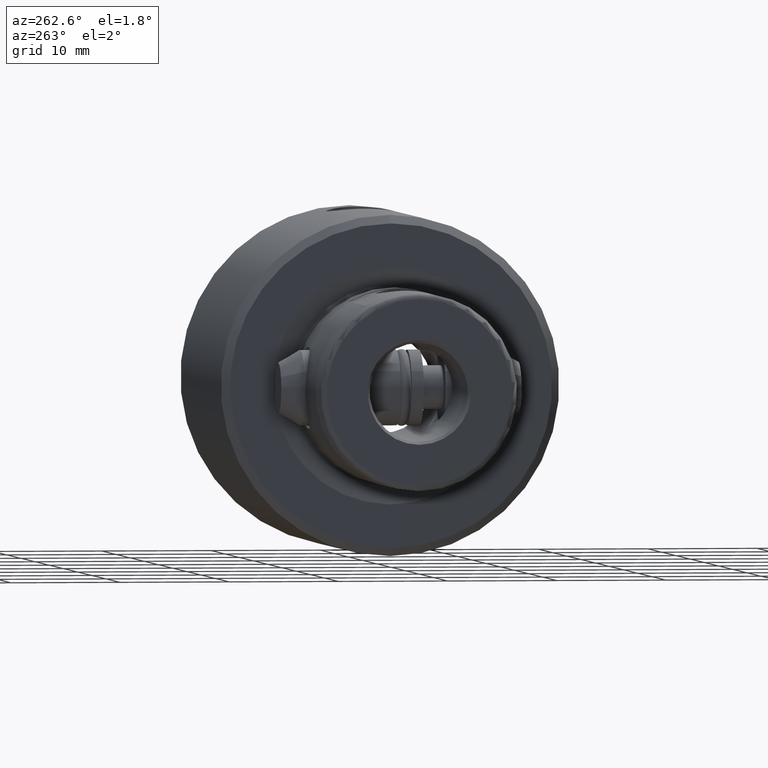
[diagram: clean part render]
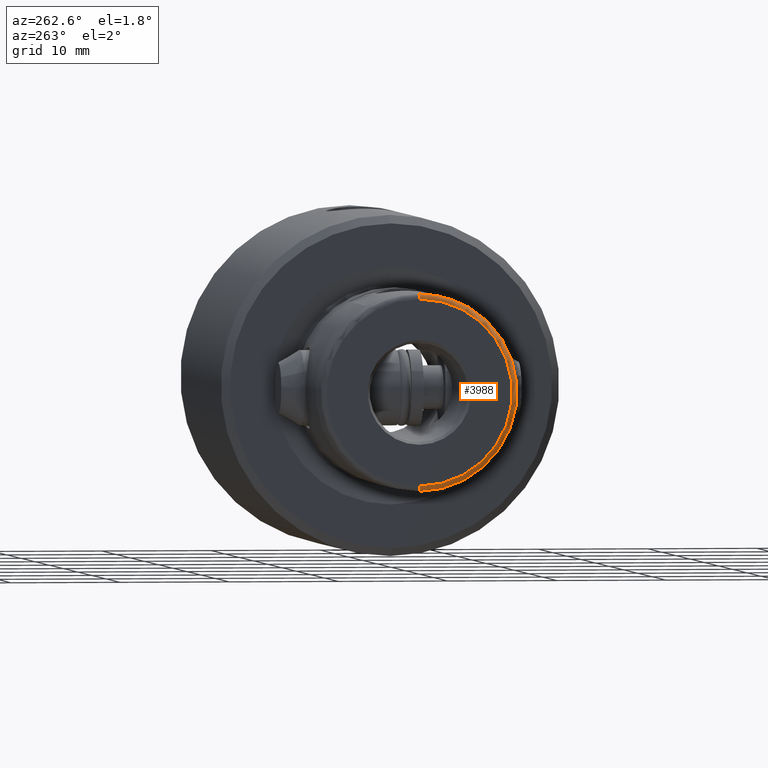
[diagram: same view with one face highlighted and labeled with its STEP entity id]
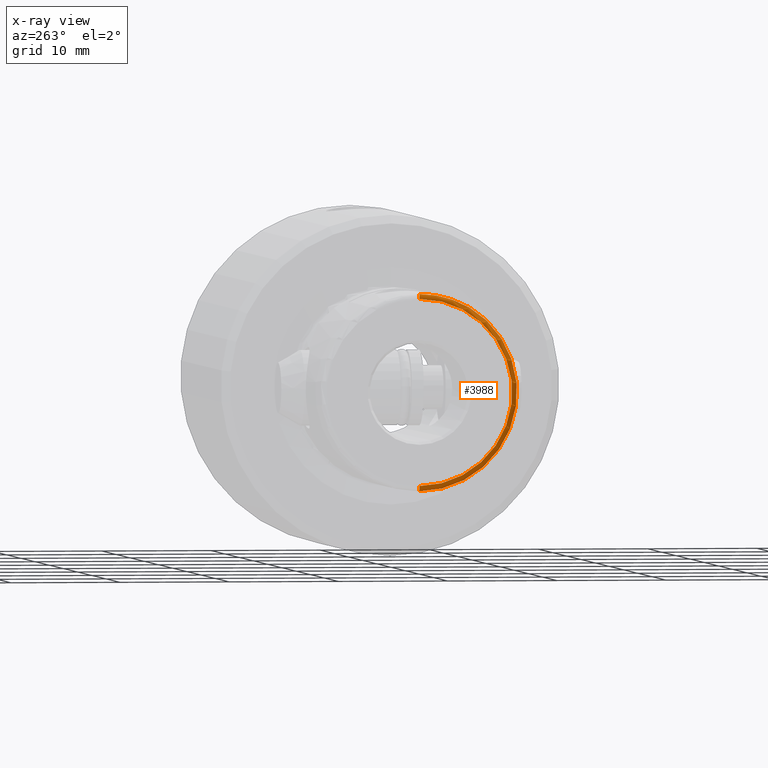
[diagram: x-ray of the same camera — body ghosted, the highlighted face saturated]
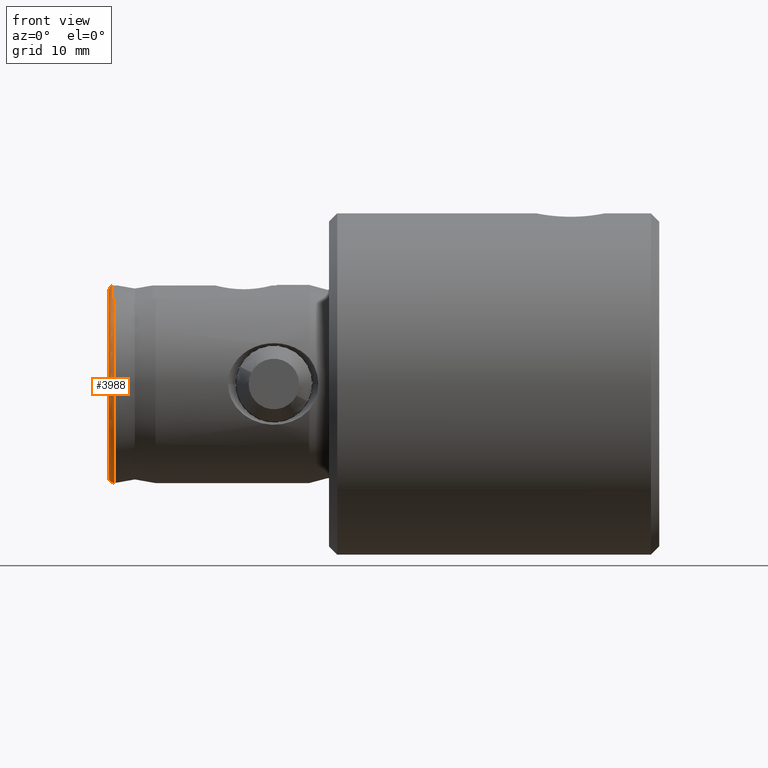
[diagram: same view with one face highlighted and labeled with its STEP entity id]
A machine part, auxiliary view. The second image highlights one B-rep face of the part: STEP entity #3988.
The next image is the same camera in x-ray: the body ghosted, the highlighted face saturated — about 0% of this face is hidden behind the body in this view.
A second angle (front view) of the same face is appended — the face is thin or edge-on in the first view.
In plain terms, the highlighted toroidal blend (fillet) surface has major radius 8.5 mm and minor (blend) radius 0.5 mm.
Its self-contained STEP definition (entity closure, byte-faithful):
#95 = ORIENTED_EDGE ( 'NONE', *, *, #2555, .F. ) ;
#128 = ORIENTED_EDGE ( 'NONE', *, *, #2601, .T. ) ;
#141 = CARTESIAN_POINT ( 'NONE',  ( 7.794228634065952100, -4.499999999999999100, 49.49999999999857900 ) ) ;
#154 = TOROIDAL_SURFACE ( 'NONE', #2292, 8.499999999999998200, 0.5000000000000000000 ) ;
#193 = CARTESIAN_POINT ( 'NONE',  ( 8.849281919723061700, -1.558715285158405600, 49.71679557122550400 ) ) ;
#215 = EDGE_CURVE ( 'NONE', #3598, #2624, #3998, .T. ) ;
#219 = DIRECTION ( 'NONE',  ( 0.0000000000000000000, 0.0000000000000000000, 1.000000000000000000 ) ) ;
#440 = CIRCLE ( 'NONE', #1591, 8.499999999999998200 ) ;
#451 = DIRECTION ( 'NONE',  ( 0.0000000000000000000, -1.000000000000000000, 0.0000000000000000000 ) ) ;
#466 = CARTESIAN_POINT ( 'NONE',  ( 8.949999999999999300, 2.685624218363530800E-011, 49.71794494717703100 ) ) ;
#547 = CARTESIAN_POINT ( 'NONE',  ( -9.000000000000001800, 1.102182119232617900E-015, 49.50000000000000000 ) ) ;
#570 = DIRECTION ( 'NONE',  ( 1.000000000000000000, 0.0000000000000000000, 0.0000000000000000000 ) ) ;
#707 = DIRECTION ( 'NONE',  ( 1.000000000000000000, 0.0000000000000000000, 0.0000000000000000000 ) ) ;
#733 = DIRECTION ( 'NONE',  ( 1.224646799147353200E-016, 1.000000000000000000, -0.0000000000000000000 ) ) ;
#877 = VERTEX_POINT ( 'NONE', #3292 ) ;
#1074 = DIRECTION ( 'NONE',  ( 1.000000000000000000, 0.0000000000000000000, 0.0000000000000000000 ) ) ;
#1076 = DIRECTION ( 'NONE',  ( -1.000000000000000000, 1.224646799147353500E-016, 0.0000000000000000000 ) ) ;
#1163 = FACE_OUTER_BOUND ( 'NONE', #1282, .T. ) ;
#1206 = VERTEX_POINT ( 'NONE', #466 ) ;
#1241 = VERTEX_POINT ( 'NONE', #3102 ) ;
#1282 = EDGE_LOOP ( 'NONE', ( #1353, #2774, #1887, #2795, #128, #95 ) ) ;
#1318 = CARTESIAN_POINT ( 'NONE',  ( 7.760325317489558100, -4.500000000000000000, 49.67221282507552600 ) ) ;
#1353 = ORIENTED_EDGE ( 'NONE', *, *, #2794, .F. ) ;
#1591 = AXIS2_PLACEMENT_3D ( 'NONE', #3205, #219, #570 ) ;
#1887 = ORIENTED_EDGE ( 'NONE', *, *, #4241, .F. ) ;
#1916 = CARTESIAN_POINT ( 'NONE',  ( 7.744228634059946400, -4.499999999999999100, 49.70345613904951400 ) ) ;
#2035 = CARTESIAN_POINT ( 'NONE',  ( 0.0000000000000000000, 0.0000000000000000000, 49.50000000000000000 ) ) ;
#2098 = EDGE_CURVE ( 'NONE', #1206, #3821, #2498, .T. ) ;
#2193 = CARTESIAN_POINT ( 'NONE',  ( 8.950000000002340500, -0.7840926357020924200, 49.71794494717707400 ) ) ;
#2286 = CARTESIAN_POINT ( 'NONE',  ( 7.794228634060171900, -4.499999999999999100, 49.53516623201438300 ) ) ;
#2292 = AXIS2_PLACEMENT_3D ( 'NONE', #2371, #3041, #1074 ) ;
#2349 = DIRECTION ( 'NONE',  ( 0.0000000000000000000, 0.0000000000000000000, 1.000000000000000000 ) ) ;
#2371 = CARTESIAN_POINT ( 'NONE',  ( 0.0000000000000000000, 0.0000000000000000000, 49.50000000000000000 ) ) ;
#2498 = B_SPLINE_CURVE_WITH_KNOTS ( 'NONE', 3,
 ( #2822, #2193, #193, #3508, #3836, #1916 ),
 .UNSPECIFIED., .F., .F.,
 ( 4, 2, 4 ),
 ( 0.004739131889864274000, 0.007111120171876692000, 0.009483108453889109100 ),
 .UNSPECIFIED. ) ;
#2554 = CIRCLE ( 'NONE', #3550, 0.5000000000000004400 ) ;
#2555 = EDGE_CURVE ( 'NONE', #877, #1241, #440, .T. ) ;
#2601 = EDGE_CURVE ( 'NONE', #1206, #1241, #2554, .T. ) ;
#2604 = AXIS2_PLACEMENT_3D ( 'NONE', #2710, #733, #1076 ) ;
#2624 = VERTEX_POINT ( 'NONE', #141 ) ;
#2710 = CARTESIAN_POINT ( 'NONE',  ( -8.499999999999998200, 1.040949779275249900E-015, 49.50000000000000000 ) ) ;
#2774 = ORIENTED_EDGE ( 'NONE', *, *, #215, .T. ) ;
#2794 = EDGE_CURVE ( 'NONE', #3598, #877, #3177, .T. ) ;
#2795 = ORIENTED_EDGE ( 'NONE', *, *, #2098, .F. ) ;
#2822 = CARTESIAN_POINT ( 'NONE',  ( 8.949999999999999300, 2.685624218363530800E-011, 49.71794494717703100 ) ) ;
#2893 = CARTESIAN_POINT ( 'NONE',  ( 7.744228634059946400, -4.499999999999999100, 49.70345613904951400 ) ) ;
#3020 = CARTESIAN_POINT ( 'NONE',  ( 8.499999999999998200, 0.0000000000000000000, 49.50000000000000000 ) ) ;
#3041 = DIRECTION ( 'NONE',  ( 0.0000000000000000000, 0.0000000000000000000, 1.000000000000000000 ) ) ;
#3102 = CARTESIAN_POINT ( 'NONE',  ( 8.499999999999998200, 0.0000000000000000000, 50.00000000000000000 ) ) ;
#3135 = B_SPLINE_CURVE_WITH_KNOTS ( 'NONE', 3,
 ( #3587, #1318, #3912, #4246, #2286, #4010 ),
 .UNSPECIFIED., .F., .F.,
 ( 4, 2, 4 ),
 ( 0.003300341506084064900, 0.003405687888078910900, 0.003511034270073756400 ),
 .UNSPECIFIED. ) ;
#3177 = CIRCLE ( 'NONE', #2604, 0.5000000000000004400 ) ;
#3205 = CARTESIAN_POINT ( 'NONE',  ( 0.0000000000000000000, 0.0000000000000000000, 50.00000000000000000 ) ) ;
#3292 = CARTESIAN_POINT ( 'NONE',  ( -8.499999999999998200, 1.071565949253933900E-015, 50.00000000000000000 ) ) ;
#3387 = AXIS2_PLACEMENT_3D ( 'NONE', #2035, #2349, #707 ) ;
#3508 = CARTESIAN_POINT ( 'NONE',  ( 8.440477618073627400, -3.088462699125081200, 49.71198463796938700 ) ) ;
#3550 = AXIS2_PLACEMENT_3D ( 'NONE', #3020, #451, #4116 ) ;
#3587 = CARTESIAN_POINT ( 'NONE',  ( 7.744228634059946400, -4.499999999999999100, 49.70345613904951400 ) ) ;
#3598 = VERTEX_POINT ( 'NONE', #547 ) ;
#3821 = VERTEX_POINT ( 'NONE', #2893 ) ;
#3836 = CARTESIAN_POINT ( 'NONE',  ( 8.140164361329983200, -3.814219203838253900, 49.70841791580756600 ) ) ;
#3912 = CARTESIAN_POINT ( 'NONE',  ( 7.772837029504985100, -4.499999999999999100, 49.63938358932687600 ) ) ;
#3988 = ADVANCED_FACE ( 'NONE', ( #1163 ), #154, .T. ) ;
#3998 = CIRCLE ( 'NONE', #3387, 9.000000000000001800 ) ;
#4010 = CARTESIAN_POINT ( 'NONE',  ( 7.794228634065952100, -4.499999999999999100, 49.49999999999857900 ) ) ;
#4116 = DIRECTION ( 'NONE',  ( 0.0000000000000000000, 0.0000000000000000000, -1.000000000000000000 ) ) ;
#4241 = EDGE_CURVE ( 'NONE', #3821, #2624, #3135, .T. ) ;
#4246 = CARTESIAN_POINT ( 'NONE',  ( 7.789962206753260800, -4.499999999999999100, 49.57023108674609800 ) ) ;